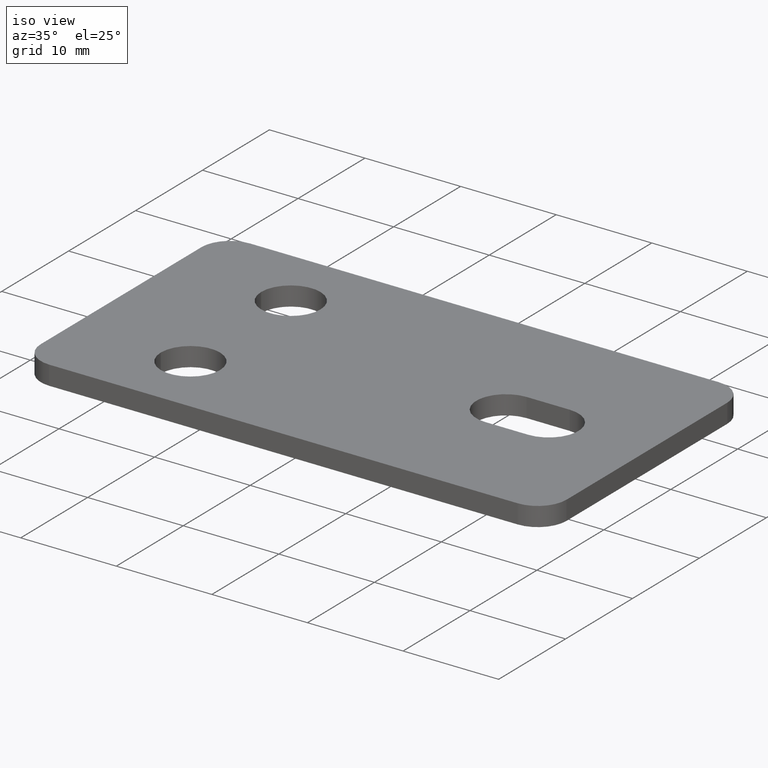
[diagram: clean part render]
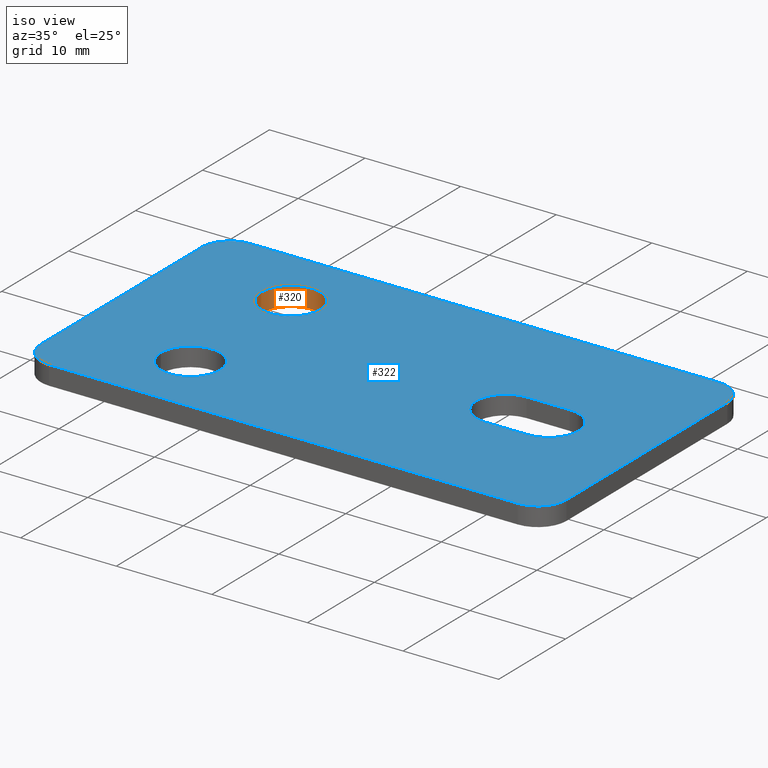
[diagram: same view with the hole feature highlighted: cylindrical wall and planar end face, labeled with their STEP entity ids]
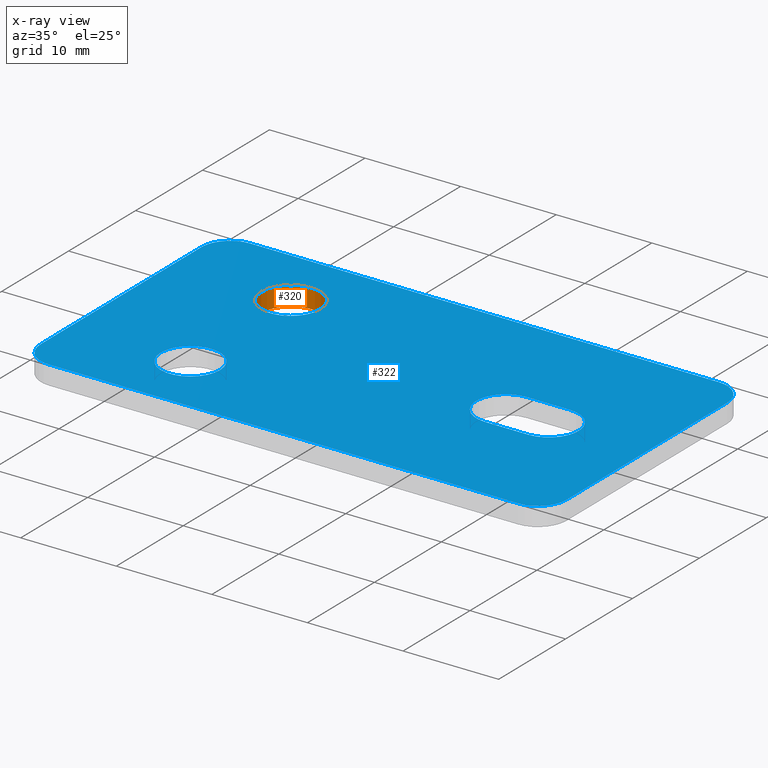
[diagram: x-ray of the same camera — body ghosted, the hole faces saturated]
A machine part, iso view. The highlighted faces form one hole feature of diameter 6.2 mm: the cylindrical wall (entity #320, orange) and its adjacent planar end face (entity #322, blue) — they share a circular edge in the B-rep.
The next image is the same camera in x-ray (body ghosted, the hole faces saturated) — the bore reads through the body.
Wall:
#42=FACE_OUTER_BOUND('',#61,.T.);
#61=EDGE_LOOP('',(#273,#274,#275,#276,#277));
#91=LINE('',#556,#117);
#117=VECTOR('',#463,3.1);
#128=CIRCLE('',#359,3.1);
#133=CIRCLE('',#371,3.1);
#134=CIRCLE('',#372,3.1);
#156=VERTEX_POINT('',#525);
#163=VERTEX_POINT('',#552);
#164=VERTEX_POINT('',#553);
#192=EDGE_CURVE('',#156,#156,#128,.T.);
#205=EDGE_CURVE('',#163,#164,#133,.T.);
#206=EDGE_CURVE('',#164,#163,#134,.T.);
#207=EDGE_CURVE('',#164,#156,#91,.T.);
#273=ORIENTED_EDGE('',*,*,#205,.F.);
#274=ORIENTED_EDGE('',*,*,#206,.F.);
#275=ORIENTED_EDGE('',*,*,#207,.T.);
#276=ORIENTED_EDGE('',*,*,#192,.F.);
#277=ORIENTED_EDGE('',*,*,#207,.F.);
#305=CYLINDRICAL_SURFACE('',#370,3.1);
#320=ADVANCED_FACE('',(#42),#305,.F.);
#359=AXIS2_PLACEMENT_3D('',#526,#427,#428);
#370=AXIS2_PLACEMENT_3D('',#551,#457,#458);
#371=AXIS2_PLACEMENT_3D('',#554,#459,#460);
#372=AXIS2_PLACEMENT_3D('',#555,#461,#462);
#427=DIRECTION('center_axis',(0.,0.,1.));
#428=DIRECTION('ref_axis',(1.,0.,0.));
#457=DIRECTION('center_axis',(0.,0.,1.));
#458=DIRECTION('ref_axis',(1.,0.,0.));
#459=DIRECTION('center_axis',(0.,0.,-1.));
#460=DIRECTION('ref_axis',(1.,0.,0.));
#461=DIRECTION('center_axis',(0.,0.,-1.));
#462=DIRECTION('ref_axis',(1.,0.,0.));
#463=DIRECTION('',(0.,0.,-1.));
#525=CARTESIAN_POINT('',(-18.1,7.5,-0.999999999999996));
#526=CARTESIAN_POINT('Origin',(-15.,7.5,-0.999999999999996));
#551=CARTESIAN_POINT('Origin',(-15.,7.5,-61.6817357768593));
#552=CARTESIAN_POINT('',(-11.9,7.5,1.));
#553=CARTESIAN_POINT('',(-18.1,7.5,0.999999999999996));
#554=CARTESIAN_POINT('Origin',(-15.,7.5,0.999999999999996));
#555=CARTESIAN_POINT('Origin',(-15.,7.5,0.999999999999996));
#556=CARTESIAN_POINT('',(-18.1,7.5,-61.6817357768593));
End face:
#18=FACE_BOUND('',#64,.T.);
#19=FACE_BOUND('',#65,.T.);
#20=FACE_BOUND('',#66,.T.);
#28=PLANE('',#376);
#44=FACE_OUTER_BOUND('',#63,.T.);
#63=EDGE_LOOP('',(#283,#284,#285,#286,#287,#288,#289,#290));
#64=EDGE_LOOP('',(#291,#292,#293,#294));
#65=EDGE_LOOP('',(#295,#296));
#66=EDGE_LOOP('',(#297,#298));
#70=LINE('',#487,#96);
#74=LINE('',#497,#100);
#79=LINE('',#512,#105);
#85=LINE('',#536,#111);
#88=LINE('',#544,#114);
#90=LINE('',#550,#116);
#96=VECTOR('',#390,10.);
#100=VECTOR('',#402,10.);
#105=VECTOR('',#415,10.);
#111=VECTOR('',#439,10.);
#114=VECTOR('',#448,10.);
#116=VECTOR('',#456,10.);
#120=CIRCLE('',#345,3.1);
#122=CIRCLE('',#349,3.1);
#123=CIRCLE('',#352,3.);
#130=CIRCLE('',#362,3.);
#131=CIRCLE('',#365,3.);
#132=CIRCLE('',#368,3.);
#133=CIRCLE('',#371,3.1);
#134=CIRCLE('',#372,3.1);
#135=CIRCLE('',#374,3.1);
#136=CIRCLE('',#375,3.1);
#139=VERTEX_POINT('',#478);
#140=VERTEX_POINT('',#480);
#142=VERTEX_POINT('',#486);
#144=VERTEX_POINT('',#492);
#145=VERTEX_POINT('',#499);
#146=VERTEX_POINT('',#500);
#150=VERTEX_POINT('',#510);
#158=VERTEX_POINT('',#530);
#159=VERTEX_POINT('',#534);
#160=VERTEX_POINT('',#538);
#161=VERTEX_POINT('',#542);
#162=VERTEX_POINT('',#546);
#163=VERTEX_POINT('',#552);
#164=VERTEX_POINT('',#553);
#165=VERTEX_POINT('',#558);
#166=VERTEX_POINT('',#559);
#169=EDGE_CURVE('',#140,#139,#120,.T.);
#172=EDGE_CURVE('',#142,#140,#70,.T.);
#175=EDGE_CURVE('',#144,#142,#122,.T.);
#178=EDGE_CURVE('',#139,#144,#74,.T.);
#179=EDGE_CURVE('',#145,#146,#123,.T.);
#185=EDGE_CURVE('',#145,#150,#79,.T.);
#195=EDGE_CURVE('',#158,#150,#130,.T.);
#197=EDGE_CURVE('',#158,#159,#85,.T.);
#199=EDGE_CURVE('',#160,#159,#131,.T.);
#201=EDGE_CURVE('',#160,#161,#88,.T.);
#203=EDGE_CURVE('',#162,#161,#132,.T.);
#204=EDGE_CURVE('',#162,#146,#90,.T.);
#205=EDGE_CURVE('',#163,#164,#133,.T.);
#206=EDGE_CURVE('',#164,#163,#134,.T.);
#208=EDGE_CURVE('',#165,#166,#135,.T.);
#209=EDGE_CURVE('',#166,#165,#136,.T.);
#283=ORIENTED_EDGE('',*,*,#179,.F.);
#284=ORIENTED_EDGE('',*,*,#185,.T.);
#285=ORIENTED_EDGE('',*,*,#195,.F.);
#286=ORIENTED_EDGE('',*,*,#197,.T.);
#287=ORIENTED_EDGE('',*,*,#199,.F.);
#288=ORIENTED_EDGE('',*,*,#201,.T.);
#289=ORIENTED_EDGE('',*,*,#203,.F.);
#290=ORIENTED_EDGE('',*,*,#204,.T.);
#291=ORIENTED_EDGE('',*,*,#175,.T.);
#292=ORIENTED_EDGE('',*,*,#172,.T.);
#293=ORIENTED_EDGE('',*,*,#169,.T.);
#294=ORIENTED_EDGE('',*,*,#178,.T.);
#295=ORIENTED_EDGE('',*,*,#205,.T.);
#296=ORIENTED_EDGE('',*,*,#206,.T.);
#297=ORIENTED_EDGE('',*,*,#208,.T.);
#298=ORIENTED_EDGE('',*,*,#209,.T.);
#322=ADVANCED_FACE('',(#44,#18,#19,#20),#28,.T.);
#345=AXIS2_PLACEMENT_3D('',#481,#384,#385);
#349=AXIS2_PLACEMENT_3D('',#493,#396,#397);
#352=AXIS2_PLACEMENT_3D('',#501,#405,#406);
#362=AXIS2_PLACEMENT_3D('',#532,#434,#435);
#365=AXIS2_PLACEMENT_3D('',#540,#443,#444);
#368=AXIS2_PLACEMENT_3D('',#548,#452,#453);
#371=AXIS2_PLACEMENT_3D('',#554,#459,#460);
#372=AXIS2_PLACEMENT_3D('',#555,#461,#462);
#374=AXIS2_PLACEMENT_3D('',#560,#466,#467);
#375=AXIS2_PLACEMENT_3D('',#561,#468,#469);
#376=AXIS2_PLACEMENT_3D('',#563,#471,#472);
#384=DIRECTION('center_axis',(0.,0.,-1.));
#385=DIRECTION('ref_axis',(0.,-1.,0.));
#390=DIRECTION('',(1.,1.2335811384724E-16,0.));
#396=DIRECTION('center_axis',(0.,0.,-1.));
#397=DIRECTION('ref_axis',(0.,1.,0.));
#402=DIRECTION('',(-1.,-2.46716227694479E-16,0.));
#405=DIRECTION('center_axis',(0.,0.,-1.));
#406=DIRECTION('ref_axis',(-0.707106781186549,0.707106781186546,0.));
#415=DIRECTION('',(2.96059473233375E-16,-1.,0.));
#434=DIRECTION('center_axis',(0.,0.,-1.));
#435=DIRECTION('ref_axis',(-0.707106781186549,-0.707106781186546,0.));
#439=DIRECTION('',(1.,-1.61486985400023E-16,0.));
#443=DIRECTION('center_axis',(0.,0.,-1.));
#444=DIRECTION('ref_axis',(0.707106781186548,-0.707106781186547,0.));
#448=DIRECTION('',(0.,1.,0.));
#452=DIRECTION('center_axis',(0.,0.,-1.));
#453=DIRECTION('ref_axis',(0.707106781186549,0.707106781186546,0.));
#456=DIRECTION('',(-1.,4.03717463500057E-17,0.));
#459=DIRECTION('center_axis',(0.,0.,-1.));
#460=DIRECTION('ref_axis',(1.,0.,0.));
#461=DIRECTION('center_axis',(0.,0.,-1.));
#462=DIRECTION('ref_axis',(1.,0.,0.));
#466=DIRECTION('center_axis',(0.,0.,-1.));
#467=DIRECTION('ref_axis',(1.,0.,0.));
#468=DIRECTION('center_axis',(0.,0.,-1.));
#469=DIRECTION('ref_axis',(1.,0.,0.));
#471=DIRECTION('center_axis',(0.,0.,1.));
#472=DIRECTION('ref_axis',(1.,0.,0.));
#478=CARTESIAN_POINT('',(17.25,-3.1,1.));
#480=CARTESIAN_POINT('',(17.25,3.1,1.));
#481=CARTESIAN_POINT('Origin',(17.25,1.53267676143421E-15,1.));
#486=CARTESIAN_POINT('',(12.75,3.1,1.));
#487=CARTESIAN_POINT('',(6.375,3.1,1.));
#492=CARTESIAN_POINT('',(12.75,-3.1,1.));
#493=CARTESIAN_POINT('Origin',(12.75,1.54949112393436E-16,1.));
#497=CARTESIAN_POINT('',(8.625,-3.1,1.));
#499=CARTESIAN_POINT('',(-27.5,12.,1.));
#500=CARTESIAN_POINT('',(-24.5,15.,1.));
#501=CARTESIAN_POINT('Origin',(-24.5,12.,1.));
#510=CARTESIAN_POINT('',(-27.5,-12.,1.));
#512=CARTESIAN_POINT('',(-27.5,-15.,1.));
#530=CARTESIAN_POINT('',(-24.5,-15.,1.));
#532=CARTESIAN_POINT('Origin',(-24.5,-12.,1.));
#534=CARTESIAN_POINT('',(24.5,-15.,1.));
#536=CARTESIAN_POINT('',(27.5,-15.,1.));
#538=CARTESIAN_POINT('',(27.5,-12.,1.));
#540=CARTESIAN_POINT('Origin',(24.5,-12.,1.));
#542=CARTESIAN_POINT('',(27.5,12.,1.));
#544=CARTESIAN_POINT('',(27.5,15.,1.));
#546=CARTESIAN_POINT('',(24.5,15.,1.));
#548=CARTESIAN_POINT('Origin',(24.5,12.,1.));
#550=CARTESIAN_POINT('',(-27.5,15.,1.));
#552=CARTESIAN_POINT('',(-11.9,7.5,1.));
#553=CARTESIAN_POINT('',(-18.1,7.5,0.999999999999996));
#554=CARTESIAN_POINT('Origin',(-15.,7.5,0.999999999999996));
#555=CARTESIAN_POINT('Origin',(-15.,7.5,0.999999999999996));
#558=CARTESIAN_POINT('',(-11.9,-7.49999999999999,1.));
#559=CARTESIAN_POINT('',(-18.1,-7.49999999999999,0.999999999999996));
#560=CARTESIAN_POINT('Origin',(-15.,-7.49999999999999,0.999999999999996));
#561=CARTESIAN_POINT('Origin',(-15.,-7.49999999999999,0.999999999999996));
#563=CARTESIAN_POINT('Origin',(3.1347473636475E-15,2.35106052273563E-15,
1.));